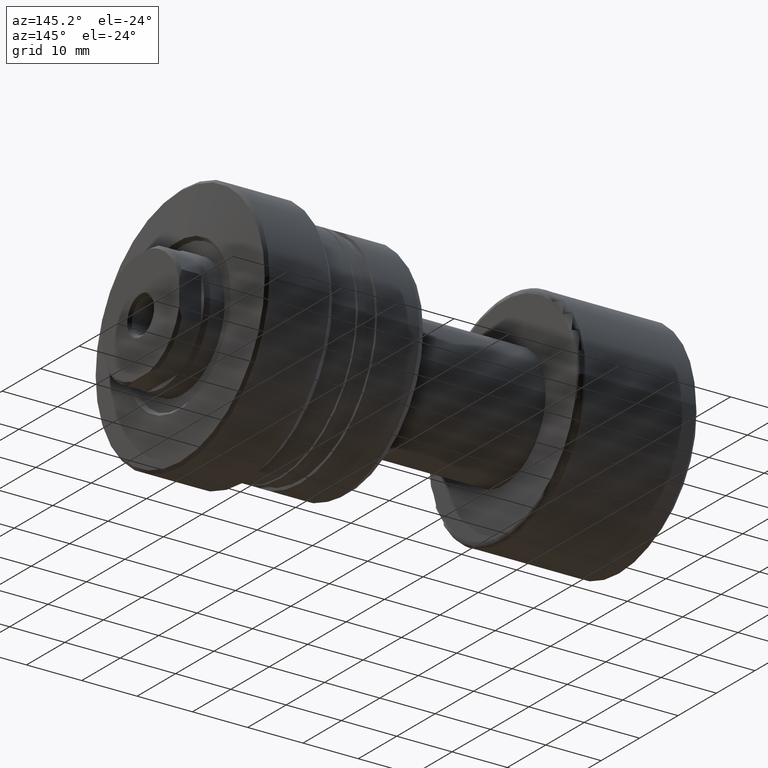
[diagram: clean part render]
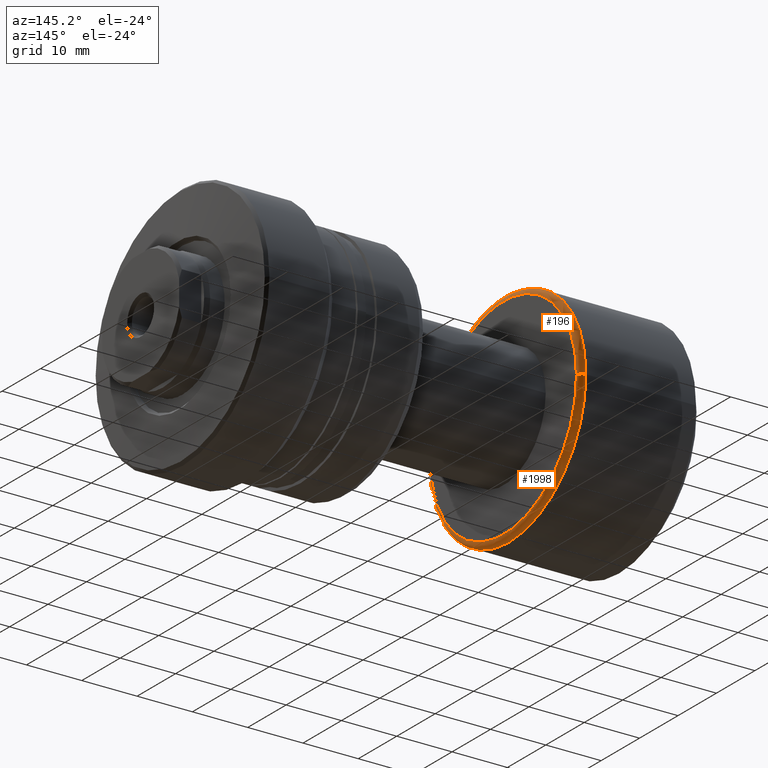
[diagram: same view with one multi-face feature highlighted, each face labeled with its STEP entity id]
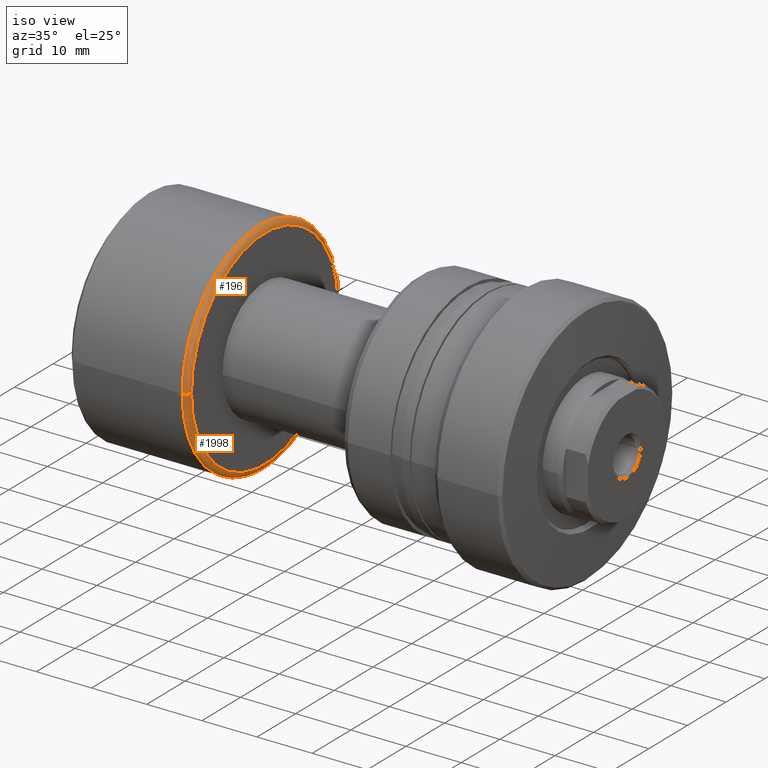
[diagram: same view with one multi-face feature highlighted, each face labeled with its STEP entity id]
A machine part, auxiliary view. The highlighted faces form ONE feature: a constant-radius fillet chain: 2 tangent blend faces with common blend radius 1 mm. The faces share edges in the B-rep.
A second angle (iso view) of the same feature is appended — it is thin or edge-on in the first view.
Their STEP definitions:
[1] entity #1998 (Torus):
#10 = DIRECTION ( 'NONE',  ( 0.000000000000000000, 0.000000000000000000, -1.000000000000000000 ) ) ;
#65 = AXIS2_PLACEMENT_3D ( 'NONE', #2124, #1940, #1621 ) ;
#66 = AXIS2_PLACEMENT_3D ( 'NONE', #1661, #1670, #535 ) ;
#148 = CARTESIAN_POINT ( 'NONE',  ( 21.40000000000000213, -20.00000000000000000, 0.000000000000000000 ) ) ;
#228 = CARTESIAN_POINT ( 'NONE',  ( 22.39999999999999858, 19.00000000000000000, 2.388061258337338939E-15 ) ) ;
#303 = CIRCLE ( 'NONE', #66, 20.00000000000000000 ) ;
#339 = VERTEX_POINT ( 'NONE', #148 ) ;
#515 = VERTEX_POINT ( 'NONE', #2032 ) ;
#535 = DIRECTION ( 'NONE',  ( 0.000000000000000000, -1.000000000000000000, 0.000000000000000000 ) ) ;
#636 = DIRECTION ( 'NONE',  ( -1.000000000000000000, -1.069542322069065801E-17, -0.000000000000000000 ) ) ;
#738 = EDGE_CURVE ( 'NONE', #2401, #515, #2350, .T. ) ;
#762 = DIRECTION ( 'NONE',  ( -1.000000000000000000, 0.000000000000000000, 0.000000000000000000 ) ) ;
#792 = ORIENTED_EDGE ( 'NONE', *, *, #1290, .T. ) ;
#909 = EDGE_CURVE ( 'NONE', #515, #339, #303, .T. ) ;
#1015 = ORIENTED_EDGE ( 'NONE', *, *, #1793, .T. ) ;
#1060 = CARTESIAN_POINT ( 'NONE',  ( 22.39999999999999858, 2.395774801434707739E-16, 0.000000000000000000 ) ) ;
#1215 = AXIS2_PLACEMENT_3D ( 'NONE', #1060, #636, #1259 ) ;
#1259 = DIRECTION ( 'NONE',  ( 0.000000000000000000, -1.000000000000000000, 0.000000000000000000 ) ) ;
#1290 = EDGE_CURVE ( 'NONE', #2401, #2144, #2114, .T. ) ;
#1321 = DIRECTION ( 'NONE',  ( 1.069542322069065801E-17, -1.000000000000000000, 0.000000000000000000 ) ) ;
#1439 = AXIS2_PLACEMENT_3D ( 'NONE', #1462, #2203, #1321 ) ;
#1462 = CARTESIAN_POINT ( 'NONE',  ( 21.39999999999999858, 0.000000000000000000, 0.000000000000000000 ) ) ;
#1535 = CIRCLE ( 'NONE', #1764, 1.000000000000000888 ) ;
#1536 = ORIENTED_EDGE ( 'NONE', *, *, #738, .F. ) ;
#1621 = DIRECTION ( 'NONE',  ( 0.000000000000000000, -1.000000000000000000, -1.224646799147353454E-16 ) ) ;
#1661 = CARTESIAN_POINT ( 'NONE',  ( 21.40000000000000213, 2.288820569227801297E-16, 0.000000000000000000 ) ) ;
#1670 = DIRECTION ( 'NONE',  ( -1.000000000000000000, -1.069542322069065801E-17, -0.000000000000000000 ) ) ;
#1703 = CARTESIAN_POINT ( 'NONE',  ( 21.39999999999999858, -19.00000000000000000, 0.000000000000000000 ) ) ;
#1764 = AXIS2_PLACEMENT_3D ( 'NONE', #1703, #10, #762 ) ;
#1793 = EDGE_CURVE ( 'NONE', #2144, #339, #1535, .T. ) ;
#1940 = DIRECTION ( 'NONE',  ( 1.309811581274509052E-33, -1.224646799147353207E-16, 1.000000000000000000 ) ) ;
#1961 = ORIENTED_EDGE ( 'NONE', *, *, #909, .F. ) ;
#1998 = ADVANCED_FACE ( 'NONE', ( #2170 ), #2424, .T. ) ;
#2008 = CARTESIAN_POINT ( 'NONE',  ( 22.39999999999999858, -19.00000000000000000, 0.000000000000000000 ) ) ;
#2032 = CARTESIAN_POINT ( 'NONE',  ( 21.40000000000000213, 20.00000000000000000, 2.449293598294706513E-15 ) ) ;
#2114 = CIRCLE ( 'NONE', #1215, 19.00000000000000000 ) ;
#2124 = CARTESIAN_POINT ( 'NONE',  ( 21.39999999999999858, 19.00000000000000000, 2.326828918379970970E-15 ) ) ;
#2144 = VERTEX_POINT ( 'NONE', #2008 ) ;
#2170 = FACE_OUTER_BOUND ( 'NONE', #2411, .T. ) ;
#2203 = DIRECTION ( 'NONE',  ( -1.000000000000000000, -1.069542322069065801E-17, -0.000000000000000000 ) ) ;
#2350 = CIRCLE ( 'NONE', #65, 1.000000000000000888 ) ;
#2401 = VERTEX_POINT ( 'NONE', #228 ) ;
#2411 = EDGE_LOOP ( 'NONE', ( #1536, #792, #1015, #1961 ) ) ;
#2424 = TOROIDAL_SURFACE ( 'NONE', #1439, 19.00000000000000000, 1.000000000000000888 ) ;
[2] entity #196 (Torus):
#7 = ORIENTED_EDGE ( 'NONE', *, *, #738, .T. ) ;
#10 = DIRECTION ( 'NONE',  ( 0.000000000000000000, 0.000000000000000000, -1.000000000000000000 ) ) ;
#65 = AXIS2_PLACEMENT_3D ( 'NONE', #2124, #1940, #1621 ) ;
#148 = CARTESIAN_POINT ( 'NONE',  ( 21.40000000000000213, -20.00000000000000000, 0.000000000000000000 ) ) ;
#196 = ADVANCED_FACE ( 'NONE', ( #1030 ), #2225, .T. ) ;
#228 = CARTESIAN_POINT ( 'NONE',  ( 22.39999999999999858, 19.00000000000000000, 2.388061258337338939E-15 ) ) ;
#339 = VERTEX_POINT ( 'NONE', #148 ) ;
#390 = EDGE_LOOP ( 'NONE', ( #1586, #7, #1588, #1219 ) ) ;
#480 = CARTESIAN_POINT ( 'NONE',  ( 21.40000000000000213, 2.288820569227801297E-16, 0.000000000000000000 ) ) ;
#515 = VERTEX_POINT ( 'NONE', #2032 ) ;
#564 = DIRECTION ( 'NONE',  ( -1.000000000000000000, -1.069542322069065801E-17, -0.000000000000000000 ) ) ;
#596 = AXIS2_PLACEMENT_3D ( 'NONE', #1293, #564, #1332 ) ;
#621 = DIRECTION ( 'NONE',  ( -1.000000000000000000, -1.069542322069065801E-17, -0.000000000000000000 ) ) ;
#738 = EDGE_CURVE ( 'NONE', #2401, #515, #2350, .T. ) ;
#762 = DIRECTION ( 'NONE',  ( -1.000000000000000000, 0.000000000000000000, 0.000000000000000000 ) ) ;
#801 = CARTESIAN_POINT ( 'NONE',  ( 21.39999999999999858, 0.000000000000000000, 0.000000000000000000 ) ) ;
#855 = AXIS2_PLACEMENT_3D ( 'NONE', #480, #1205, #1242 ) ;
#901 = CIRCLE ( 'NONE', #855, 20.00000000000000000 ) ;
#1030 = FACE_OUTER_BOUND ( 'NONE', #390, .T. ) ;
#1205 = DIRECTION ( 'NONE',  ( -1.000000000000000000, -1.069542322069065801E-17, -0.000000000000000000 ) ) ;
#1219 = ORIENTED_EDGE ( 'NONE', *, *, #1793, .F. ) ;
#1242 = DIRECTION ( 'NONE',  ( 0.000000000000000000, -1.000000000000000000, 0.000000000000000000 ) ) ;
#1293 = CARTESIAN_POINT ( 'NONE',  ( 22.39999999999999858, 2.395774801434707739E-16, 0.000000000000000000 ) ) ;
#1332 = DIRECTION ( 'NONE',  ( 0.000000000000000000, -1.000000000000000000, 0.000000000000000000 ) ) ;
#1531 = EDGE_CURVE ( 'NONE', #339, #515, #901, .T. ) ;
#1535 = CIRCLE ( 'NONE', #1764, 1.000000000000000888 ) ;
#1586 = ORIENTED_EDGE ( 'NONE', *, *, #1927, .T. ) ;
#1588 = ORIENTED_EDGE ( 'NONE', *, *, #1531, .F. ) ;
#1621 = DIRECTION ( 'NONE',  ( 0.000000000000000000, -1.000000000000000000, -1.224646799147353454E-16 ) ) ;
#1703 = CARTESIAN_POINT ( 'NONE',  ( 21.39999999999999858, -19.00000000000000000, 0.000000000000000000 ) ) ;
#1764 = AXIS2_PLACEMENT_3D ( 'NONE', #1703, #10, #762 ) ;
#1793 = EDGE_CURVE ( 'NONE', #2144, #339, #1535, .T. ) ;
#1925 = DIRECTION ( 'NONE',  ( 1.069542322069065801E-17, -1.000000000000000000, 0.000000000000000000 ) ) ;
#1927 = EDGE_CURVE ( 'NONE', #2144, #2401, #2258, .T. ) ;
#1940 = DIRECTION ( 'NONE',  ( 1.309811581274509052E-33, -1.224646799147353207E-16, 1.000000000000000000 ) ) ;
#2008 = CARTESIAN_POINT ( 'NONE',  ( 22.39999999999999858, -19.00000000000000000, 0.000000000000000000 ) ) ;
#2032 = CARTESIAN_POINT ( 'NONE',  ( 21.40000000000000213, 20.00000000000000000, 2.449293598294706513E-15 ) ) ;
#2065 = AXIS2_PLACEMENT_3D ( 'NONE', #801, #621, #1925 ) ;
#2124 = CARTESIAN_POINT ( 'NONE',  ( 21.39999999999999858, 19.00000000000000000, 2.326828918379970970E-15 ) ) ;
#2144 = VERTEX_POINT ( 'NONE', #2008 ) ;
#2225 = TOROIDAL_SURFACE ( 'NONE', #2065, 19.00000000000000000, 1.000000000000000888 ) ;
#2258 = CIRCLE ( 'NONE', #596, 19.00000000000000000 ) ;
#2350 = CIRCLE ( 'NONE', #65, 1.000000000000000888 ) ;
#2401 = VERTEX_POINT ( 'NONE', #228 ) ;